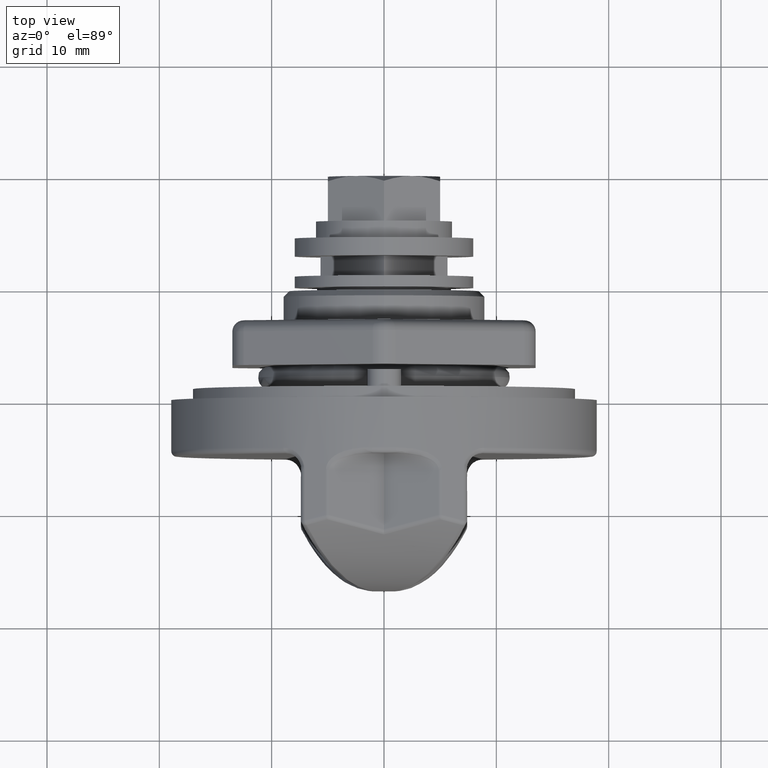
[diagram: clean part render]
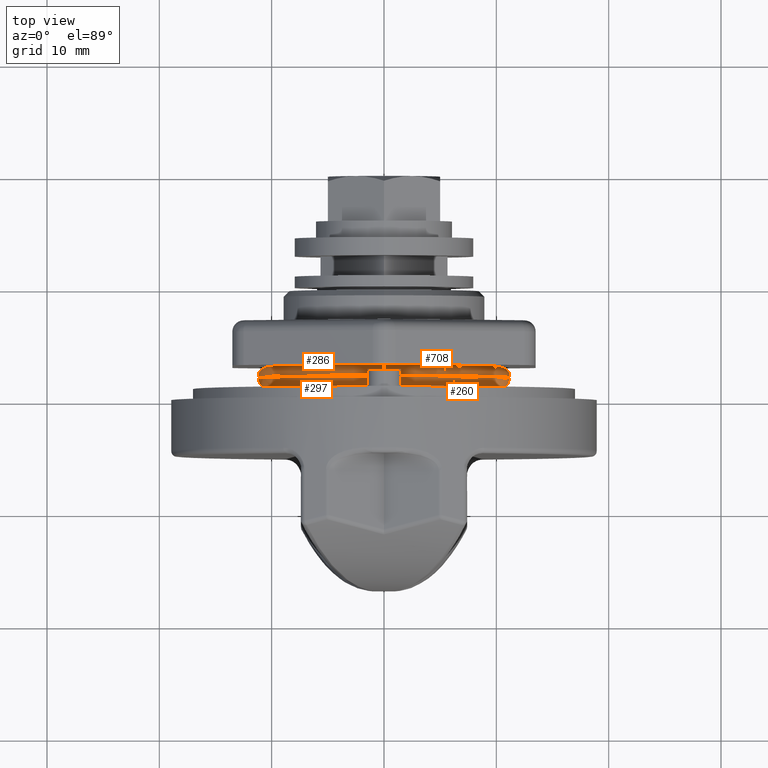
[diagram: same view with one multi-face feature highlighted, each face labeled with its STEP entity id]
A machine part, top view. The highlighted faces form ONE feature: a constant-radius fillet chain: 4 tangent blend faces with common blend radius 1 mm. The faces share edges in the B-rep.
Their STEP definitions:
[1] entity #297 (Torus):
#231 = EDGE_CURVE ( 'NONE', #256, #257, #5001, .T. ) ;
#244 = EDGE_LOOP ( 'NONE', ( #298, #299, #301, #302 ) ) ;
#251 = EDGE_CURVE ( 'NONE', #252, #253, #5039, .T. ) ;
#252 = VERTEX_POINT ( 'NONE', #5034 ) ;
#253 = VERTEX_POINT ( 'NONE', #5033 ) ;
#256 = VERTEX_POINT ( 'NONE', #5027 ) ;
#257 = VERTEX_POINT ( 'NONE', #5026 ) ;
#297 = ADVANCED_FACE ( 'NONE', ( #5145 ), #5138, .T. ) ;
#298 = ORIENTED_EDGE ( 'NONE', *, *, #231, .F. ) ;
#299 = ORIENTED_EDGE ( 'NONE', *, *, #300, .T. ) ;
#300 = EDGE_CURVE ( 'NONE', #256, #252, #5134, .T. ) ;
#301 = ORIENTED_EDGE ( 'NONE', *, *, #251, .T. ) ;
#302 = ORIENTED_EDGE ( 'NONE', *, *, #303, .F. ) ;
#303 = EDGE_CURVE ( 'NONE', #257, #253, #5194, .T. ) ;
#4997 = DIRECTION ( 'NONE',  ( 0.0000000000000000000, 0.0000000000000000000, -1.000000000000000000 ) ) ;
#4998 = DIRECTION ( 'NONE',  ( 0.0000000000000000000, -1.000000000000000000, 0.0000000000000000000 ) ) ;
#4999 = CARTESIAN_POINT ( 'NONE',  ( 2.000000000000000000, 0.0000000000000000000, 10.25000000000000000 ) ) ;
#5000 = AXIS2_PLACEMENT_3D ( 'NONE', #4999, #4998, #4997 ) ;
#5001 = CIRCLE ( 'NONE', #5000, 0.9999999999999991100 ) ;
#5026 = CARTESIAN_POINT ( 'NONE',  ( 2.000000000000000000, 0.0000000000000000000, 9.250000000000001800 ) ) ;
#5027 = CARTESIAN_POINT ( 'NONE',  ( 2.000000000000000000, 0.0000000000000000000, 11.25000000000000000 ) ) ;
#5033 = CARTESIAN_POINT ( 'NONE',  ( 2.000000000000000000, 1.132798289211301700E-015, -9.250000000000001800 ) ) ;
#5034 = CARTESIAN_POINT ( 'NONE',  ( 2.000000000000000000, 1.377727649040772400E-015, -11.25000000000000000 ) ) ;
#5035 = DIRECTION ( 'NONE',  ( 0.0000000000000000000, -1.224646799147353500E-016, 1.000000000000000000 ) ) ;
#5036 = DIRECTION ( 'NONE',  ( 0.0000000000000000000, 1.000000000000000000, 1.224646799147353200E-016 ) ) ;
#5037 = CARTESIAN_POINT ( 'NONE',  ( 2.000000000000000000, 1.255262969126037200E-015, -10.25000000000000000 ) ) ;
#5038 = AXIS2_PLACEMENT_3D ( 'NONE', #5037, #5036, #5035 ) ;
#5039 = CIRCLE ( 'NONE', #5038, 0.9999999999999991100 ) ;
#5131 = DIRECTION ( 'NONE',  ( -1.000000000000000000, 0.0000000000000000000, 0.0000000000000000000 ) ) ;
#5132 = CARTESIAN_POINT ( 'NONE',  ( 2.000000000000000000, 0.0000000000000000000, 0.0000000000000000000 ) ) ;
#5133 = AXIS2_PLACEMENT_3D ( 'NONE', #5132, #5131, #5195 ) ;
#5134 = CIRCLE ( 'NONE', #5133, 11.25000000000000000 ) ;
#5135 = DIRECTION ( 'NONE',  ( 0.0000000000000000000, 0.0000000000000000000, 1.000000000000000000 ) ) ;
#5136 = DIRECTION ( 'NONE',  ( -1.000000000000000000, 0.0000000000000000000, 0.0000000000000000000 ) ) ;
#5137 = AXIS2_PLACEMENT_3D ( 'NONE', #5139, #5136, #5135 ) ;
#5138 = TOROIDAL_SURFACE ( 'NONE', #5137, 10.25000000000000000, 1.000000000000000000 ) ;
#5139 = CARTESIAN_POINT ( 'NONE',  ( 2.000000000000000000, 0.0000000000000000000, 0.0000000000000000000 ) ) ;
#5145 = FACE_OUTER_BOUND ( 'NONE', #244, .T. ) ;
#5190 = DIRECTION ( 'NONE',  ( 0.0000000000000000000, 0.0000000000000000000, 1.000000000000000000 ) ) ;
#5191 = DIRECTION ( 'NONE',  ( -1.000000000000000000, 0.0000000000000000000, 0.0000000000000000000 ) ) ;
#5192 = CARTESIAN_POINT ( 'NONE',  ( 2.000000000000000000, 0.0000000000000000000, 0.0000000000000000000 ) ) ;
#5193 = AXIS2_PLACEMENT_3D ( 'NONE', #5192, #5191, #5190 ) ;
#5194 = CIRCLE ( 'NONE', #5193, 9.250000000000001800 ) ;
#5195 = DIRECTION ( 'NONE',  ( 0.0000000000000000000, 0.0000000000000000000, 1.000000000000000000 ) ) ;
[2] entity #286 (Torus):
#252 = VERTEX_POINT ( 'NONE', #5034 ) ;
#256 = VERTEX_POINT ( 'NONE', #5027 ) ;
#286 = ADVANCED_FACE ( 'NONE', ( #5095 ), #5162, .T. ) ;
#287 = EDGE_LOOP ( 'NONE', ( #288, #289, #292, #295 ) ) ;
#288 = ORIENTED_EDGE ( 'NONE', *, *, #300, .F. ) ;
#289 = ORIENTED_EDGE ( 'NONE', *, *, #290, .F. ) ;
#290 = EDGE_CURVE ( 'NONE', #291, #256, #5157, .T. ) ;
#291 = VERTEX_POINT ( 'NONE', #5152 ) ;
#292 = ORIENTED_EDGE ( 'NONE', *, *, #293, .T. ) ;
#293 = EDGE_CURVE ( 'NONE', #291, #294, #5151, .T. ) ;
#294 = VERTEX_POINT ( 'NONE', #5146 ) ;
#295 = ORIENTED_EDGE ( 'NONE', *, *, #349, .T. ) ;
#300 = EDGE_CURVE ( 'NONE', #256, #252, #5134, .T. ) ;
#349 = EDGE_CURVE ( 'NONE', #294, #252, #5246, .T. ) ;
#5027 = CARTESIAN_POINT ( 'NONE',  ( 2.000000000000000000, 0.0000000000000000000, 11.25000000000000000 ) ) ;
#5034 = CARTESIAN_POINT ( 'NONE',  ( 2.000000000000000000, 1.377727649040772400E-015, -11.25000000000000000 ) ) ;
#5095 = FACE_OUTER_BOUND ( 'NONE', #287, .T. ) ;
#5131 = DIRECTION ( 'NONE',  ( -1.000000000000000000, 0.0000000000000000000, 0.0000000000000000000 ) ) ;
#5132 = CARTESIAN_POINT ( 'NONE',  ( 2.000000000000000000, 0.0000000000000000000, 0.0000000000000000000 ) ) ;
#5133 = AXIS2_PLACEMENT_3D ( 'NONE', #5132, #5131, #5195 ) ;
#5134 = CIRCLE ( 'NONE', #5133, 11.25000000000000000 ) ;
#5146 = CARTESIAN_POINT ( 'NONE',  ( 2.994987437106620300, 1.267509437117510600E-015, -10.35000000000000000 ) ) ;
#5147 = DIRECTION ( 'NONE',  ( 0.0000000000000000000, 0.0000000000000000000, 1.000000000000000000 ) ) ;
#5148 = DIRECTION ( 'NONE',  ( -1.000000000000000000, 0.0000000000000000000, 0.0000000000000000000 ) ) ;
#5149 = CARTESIAN_POINT ( 'NONE',  ( 2.994987437106620300, 0.0000000000000000000, 0.0000000000000000000 ) ) ;
#5150 = AXIS2_PLACEMENT_3D ( 'NONE', #5149, #5148, #5147 ) ;
#5151 = CIRCLE ( 'NONE', #5150, 10.35000000000000000 ) ;
#5152 = CARTESIAN_POINT ( 'NONE',  ( 2.994987437106620300, 0.0000000000000000000, 10.35000000000000000 ) ) ;
#5153 = DIRECTION ( 'NONE',  ( 0.0000000000000000000, 0.0000000000000000000, -1.000000000000000000 ) ) ;
#5154 = DIRECTION ( 'NONE',  ( 0.0000000000000000000, -1.000000000000000000, 0.0000000000000000000 ) ) ;
#5155 = CARTESIAN_POINT ( 'NONE',  ( 2.000000000000000000, 0.0000000000000000000, 10.25000000000000000 ) ) ;
#5156 = AXIS2_PLACEMENT_3D ( 'NONE', #5155, #5154, #5153 ) ;
#5157 = CIRCLE ( 'NONE', #5156, 0.9999999999999991100 ) ;
#5158 = DIRECTION ( 'NONE',  ( 0.0000000000000000000, 0.0000000000000000000, 1.000000000000000000 ) ) ;
#5159 = DIRECTION ( 'NONE',  ( -1.000000000000000000, 0.0000000000000000000, 0.0000000000000000000 ) ) ;
#5160 = CARTESIAN_POINT ( 'NONE',  ( 2.000000000000000000, 0.0000000000000000000, 0.0000000000000000000 ) ) ;
#5161 = AXIS2_PLACEMENT_3D ( 'NONE', #5160, #5159, #5158 ) ;
#5162 = TOROIDAL_SURFACE ( 'NONE', #5161, 10.25000000000000000, 1.000000000000000000 ) ;
#5195 = DIRECTION ( 'NONE',  ( 0.0000000000000000000, 0.0000000000000000000, 1.000000000000000000 ) ) ;
#5242 = DIRECTION ( 'NONE',  ( 0.0000000000000000000, -1.224646799147353500E-016, 1.000000000000000000 ) ) ;
#5243 = DIRECTION ( 'NONE',  ( 0.0000000000000000000, 1.000000000000000000, 1.224646799147353200E-016 ) ) ;
#5244 = CARTESIAN_POINT ( 'NONE',  ( 2.000000000000000000, 1.255262969126037200E-015, -10.25000000000000000 ) ) ;
#5245 = AXIS2_PLACEMENT_3D ( 'NONE', #5244, #5243, #5242 ) ;
#5246 = CIRCLE ( 'NONE', #5245, 0.9999999999999991100 ) ;
[3] entity #708 (Torus):
#252 = VERTEX_POINT ( 'NONE', #5034 ) ;
#255 = EDGE_CURVE ( 'NONE', #252, #256, #5032, .T. ) ;
#256 = VERTEX_POINT ( 'NONE', #5027 ) ;
#290 = EDGE_CURVE ( 'NONE', #291, #256, #5157, .T. ) ;
#291 = VERTEX_POINT ( 'NONE', #5152 ) ;
#294 = VERTEX_POINT ( 'NONE', #5146 ) ;
#349 = EDGE_CURVE ( 'NONE', #294, #252, #5246, .T. ) ;
#631 = ORIENTED_EDGE ( 'NONE', *, *, #349, .F. ) ;
#632 = ORIENTED_EDGE ( 'NONE', *, *, #9622, .T. ) ;
#633 = ORIENTED_EDGE ( 'NONE', *, *, #290, .T. ) ;
#708 = ADVANCED_FACE ( 'NONE', ( #5893 ), #5892, .T. ) ;
#709 = EDGE_LOOP ( 'NONE', ( #710, #631, #632, #633 ) ) ;
#710 = ORIENTED_EDGE ( 'NONE', *, *, #255, .F. ) ;
#5027 = CARTESIAN_POINT ( 'NONE',  ( 2.000000000000000000, 0.0000000000000000000, 11.25000000000000000 ) ) ;
#5028 = DIRECTION ( 'NONE',  ( 0.0000000000000000000, 0.0000000000000000000, 1.000000000000000000 ) ) ;
#5029 = DIRECTION ( 'NONE',  ( -1.000000000000000000, 0.0000000000000000000, 0.0000000000000000000 ) ) ;
#5030 = CARTESIAN_POINT ( 'NONE',  ( 2.000000000000000000, 0.0000000000000000000, 0.0000000000000000000 ) ) ;
#5031 = AXIS2_PLACEMENT_3D ( 'NONE', #5030, #5029, #5028 ) ;
#5032 = CIRCLE ( 'NONE', #5031, 11.25000000000000000 ) ;
#5034 = CARTESIAN_POINT ( 'NONE',  ( 2.000000000000000000, 1.377727649040772400E-015, -11.25000000000000000 ) ) ;
#5146 = CARTESIAN_POINT ( 'NONE',  ( 2.994987437106620300, 1.267509437117510600E-015, -10.35000000000000000 ) ) ;
#5152 = CARTESIAN_POINT ( 'NONE',  ( 2.994987437106620300, 0.0000000000000000000, 10.35000000000000000 ) ) ;
#5153 = DIRECTION ( 'NONE',  ( 0.0000000000000000000, 0.0000000000000000000, -1.000000000000000000 ) ) ;
#5154 = DIRECTION ( 'NONE',  ( 0.0000000000000000000, -1.000000000000000000, 0.0000000000000000000 ) ) ;
#5155 = CARTESIAN_POINT ( 'NONE',  ( 2.000000000000000000, 0.0000000000000000000, 10.25000000000000000 ) ) ;
#5156 = AXIS2_PLACEMENT_3D ( 'NONE', #5155, #5154, #5153 ) ;
#5157 = CIRCLE ( 'NONE', #5156, 0.9999999999999991100 ) ;
#5242 = DIRECTION ( 'NONE',  ( 0.0000000000000000000, -1.224646799147353500E-016, 1.000000000000000000 ) ) ;
#5243 = DIRECTION ( 'NONE',  ( 0.0000000000000000000, 1.000000000000000000, 1.224646799147353200E-016 ) ) ;
#5244 = CARTESIAN_POINT ( 'NONE',  ( 2.000000000000000000, 1.255262969126037200E-015, -10.25000000000000000 ) ) ;
#5245 = AXIS2_PLACEMENT_3D ( 'NONE', #5244, #5243, #5242 ) ;
#5246 = CIRCLE ( 'NONE', #5245, 0.9999999999999991100 ) ;
#5887 = DIRECTION ( 'NONE',  ( 0.0000000000000000000, 0.0000000000000000000, 1.000000000000000000 ) ) ;
#5888 = DIRECTION ( 'NONE',  ( -1.000000000000000000, 0.0000000000000000000, 0.0000000000000000000 ) ) ;
#5889 = CARTESIAN_POINT ( 'NONE',  ( 2.000000000000000000, 0.0000000000000000000, 0.0000000000000000000 ) ) ;
#5890 = AXIS2_PLACEMENT_3D ( 'NONE', #5889, #5888, #5887 ) ;
#5892 = TOROIDAL_SURFACE ( 'NONE', #5890, 10.25000000000000000, 1.000000000000000000 ) ;
#5893 = FACE_OUTER_BOUND ( 'NONE', #709, .T. ) ;
#7652 = DIRECTION ( 'NONE',  ( 0.0000000000000000000, 0.0000000000000000000, 1.000000000000000000 ) ) ;
#7653 = DIRECTION ( 'NONE',  ( -1.000000000000000000, 0.0000000000000000000, 0.0000000000000000000 ) ) ;
#7654 = CARTESIAN_POINT ( 'NONE',  ( 2.994987437106620300, 0.0000000000000000000, 0.0000000000000000000 ) ) ;
#7655 = AXIS2_PLACEMENT_3D ( 'NONE', #7654, #7653, #7652 ) ;
#7656 = CIRCLE ( 'NONE', #7655, 10.35000000000000000 ) ;
#9622 = EDGE_CURVE ( 'NONE', #294, #291, #7656, .T. ) ;
[4] entity #260 (Torus):
#231 = EDGE_CURVE ( 'NONE', #256, #257, #5001, .T. ) ;
#232 = ORIENTED_EDGE ( 'NONE', *, *, #233, .F. ) ;
#233 = EDGE_CURVE ( 'NONE', #253, #257, #4996, .T. ) ;
#250 = ORIENTED_EDGE ( 'NONE', *, *, #251, .F. ) ;
#251 = EDGE_CURVE ( 'NONE', #252, #253, #5039, .T. ) ;
#252 = VERTEX_POINT ( 'NONE', #5034 ) ;
#253 = VERTEX_POINT ( 'NONE', #5033 ) ;
#254 = ORIENTED_EDGE ( 'NONE', *, *, #255, .T. ) ;
#255 = EDGE_CURVE ( 'NONE', #252, #256, #5032, .T. ) ;
#256 = VERTEX_POINT ( 'NONE', #5027 ) ;
#257 = VERTEX_POINT ( 'NONE', #5026 ) ;
#260 = ADVANCED_FACE ( 'NONE', ( #5070 ), #5067, .T. ) ;
#261 = EDGE_LOOP ( 'NONE', ( #250, #254, #307, #232 ) ) ;
#307 = ORIENTED_EDGE ( 'NONE', *, *, #231, .T. ) ;
#4992 = DIRECTION ( 'NONE',  ( 0.0000000000000000000, 0.0000000000000000000, 1.000000000000000000 ) ) ;
#4993 = DIRECTION ( 'NONE',  ( -1.000000000000000000, 0.0000000000000000000, 0.0000000000000000000 ) ) ;
#4994 = CARTESIAN_POINT ( 'NONE',  ( 2.000000000000000000, 0.0000000000000000000, 0.0000000000000000000 ) ) ;
#4995 = AXIS2_PLACEMENT_3D ( 'NONE', #4994, #4993, #4992 ) ;
#4996 = CIRCLE ( 'NONE', #4995, 9.250000000000001800 ) ;
#4997 = DIRECTION ( 'NONE',  ( 0.0000000000000000000, 0.0000000000000000000, -1.000000000000000000 ) ) ;
#4998 = DIRECTION ( 'NONE',  ( 0.0000000000000000000, -1.000000000000000000, 0.0000000000000000000 ) ) ;
#4999 = CARTESIAN_POINT ( 'NONE',  ( 2.000000000000000000, 0.0000000000000000000, 10.25000000000000000 ) ) ;
#5000 = AXIS2_PLACEMENT_3D ( 'NONE', #4999, #4998, #4997 ) ;
#5001 = CIRCLE ( 'NONE', #5000, 0.9999999999999991100 ) ;
#5026 = CARTESIAN_POINT ( 'NONE',  ( 2.000000000000000000, 0.0000000000000000000, 9.250000000000001800 ) ) ;
#5027 = CARTESIAN_POINT ( 'NONE',  ( 2.000000000000000000, 0.0000000000000000000, 11.25000000000000000 ) ) ;
#5028 = DIRECTION ( 'NONE',  ( 0.0000000000000000000, 0.0000000000000000000, 1.000000000000000000 ) ) ;
#5029 = DIRECTION ( 'NONE',  ( -1.000000000000000000, 0.0000000000000000000, 0.0000000000000000000 ) ) ;
#5030 = CARTESIAN_POINT ( 'NONE',  ( 2.000000000000000000, 0.0000000000000000000, 0.0000000000000000000 ) ) ;
#5031 = AXIS2_PLACEMENT_3D ( 'NONE', #5030, #5029, #5028 ) ;
#5032 = CIRCLE ( 'NONE', #5031, 11.25000000000000000 ) ;
#5033 = CARTESIAN_POINT ( 'NONE',  ( 2.000000000000000000, 1.132798289211301700E-015, -9.250000000000001800 ) ) ;
#5034 = CARTESIAN_POINT ( 'NONE',  ( 2.000000000000000000, 1.377727649040772400E-015, -11.25000000000000000 ) ) ;
#5035 = DIRECTION ( 'NONE',  ( 0.0000000000000000000, -1.224646799147353500E-016, 1.000000000000000000 ) ) ;
#5036 = DIRECTION ( 'NONE',  ( 0.0000000000000000000, 1.000000000000000000, 1.224646799147353200E-016 ) ) ;
#5037 = CARTESIAN_POINT ( 'NONE',  ( 2.000000000000000000, 1.255262969126037200E-015, -10.25000000000000000 ) ) ;
#5038 = AXIS2_PLACEMENT_3D ( 'NONE', #5037, #5036, #5035 ) ;
#5039 = CIRCLE ( 'NONE', #5038, 0.9999999999999991100 ) ;
#5064 = DIRECTION ( 'NONE',  ( 0.0000000000000000000, 0.0000000000000000000, 1.000000000000000000 ) ) ;
#5065 = DIRECTION ( 'NONE',  ( -1.000000000000000000, 0.0000000000000000000, 0.0000000000000000000 ) ) ;
#5066 = AXIS2_PLACEMENT_3D ( 'NONE', #5069, #5065, #5064 ) ;
#5067 = TOROIDAL_SURFACE ( 'NONE', #5066, 10.25000000000000000, 1.000000000000000000 ) ;
#5069 = CARTESIAN_POINT ( 'NONE',  ( 2.000000000000000000, 0.0000000000000000000, 0.0000000000000000000 ) ) ;
#5070 = FACE_OUTER_BOUND ( 'NONE', #261, .T. ) ;